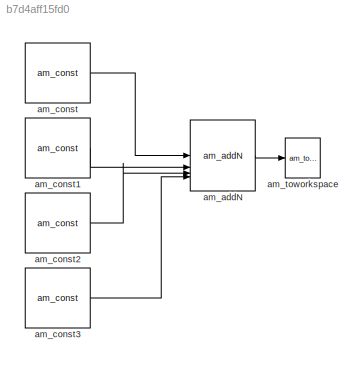
MODEL slx_b7d4aff15fd0
KIND model
CONFIG AbsTol = auto
CONFIG EnableMultiTasking = off
CONFIG FixedStep = auto
CONFIG MaxStep = auto
CONFIG MinStep = auto
CONFIG RelTol = 1e-3
CONFIG SampleTimeConstraint = Unconstrained
CONFIG SolverName = VariableStepAuto
CONFIG StartTime = 0.0
CONFIG StopTime = 10.0
BLOCK [Reference] am_addN  REF=NSA_DEVS_MATH_OPERATIONS/am_addN
  SourceBlock = NSA_DEVS_MATH_OPERATIONS/am_addN
  SourceProductName = Math Operations
  SourceType = AddN
BLOCK [Reference] am_const  REF=NSA_DEVS_SOURCES/am_const
  SourceBlock = NSA_DEVS_SOURCES/am_const
  SourceProductName = Sources
  SourceType = Const
BLOCK [Reference] am_const1  REF=NSA_DEVS_SOURCES/am_const
  SourceBlock = NSA_DEVS_SOURCES/am_const
  SourceProductName = Sources
  SourceType = Const
BLOCK [Reference] am_const2  REF=NSA_DEVS_SOURCES/am_const
  SourceBlock = NSA_DEVS_SOURCES/am_const
  SourceProductName = Sources
  SourceType = Const
BLOCK [Reference] am_const3  REF=NSA_DEVS_SOURCES/am_const
  SourceBlock = NSA_DEVS_SOURCES/am_const
  SourceProductName = Sources
  SourceType = Const
BLOCK [Reference] am_toworkspace  REF=NSA_DEVS_SINKS/am_toworkspace
  SourceBlock = NSA_DEVS_SINKS/am_toworkspace
  SourceProductName = Sinks
  SourceType = ToWorkspace
LINE am_addN:1 -> am_toworkspace:1
LINE am_const1:1 -> am_addN:2
LINE am_const2:1 -> am_addN:3
LINE am_const3:1 -> am_addN:4
LINE am_const:1 -> am_addN:1
